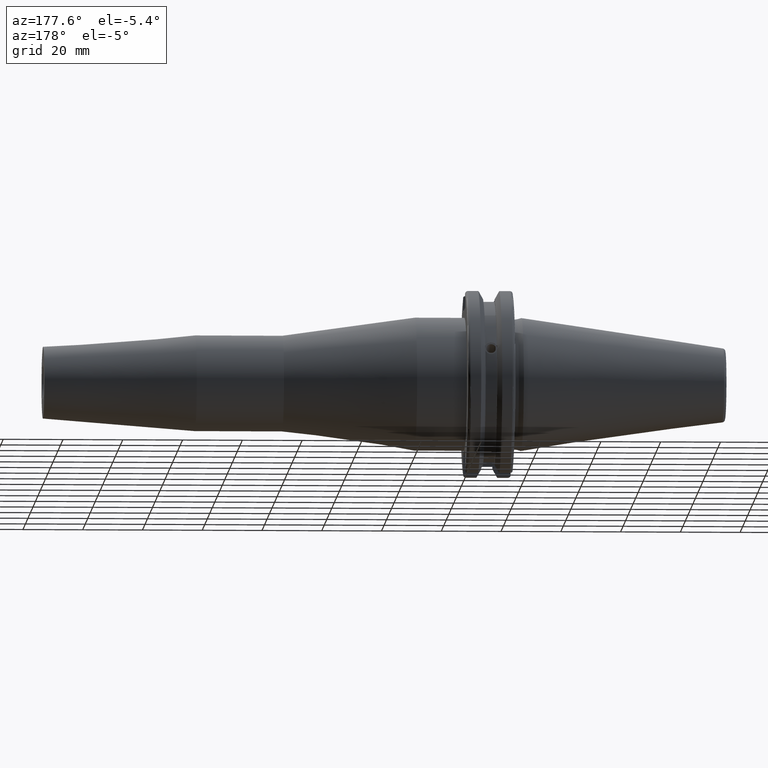
[diagram: clean part render]
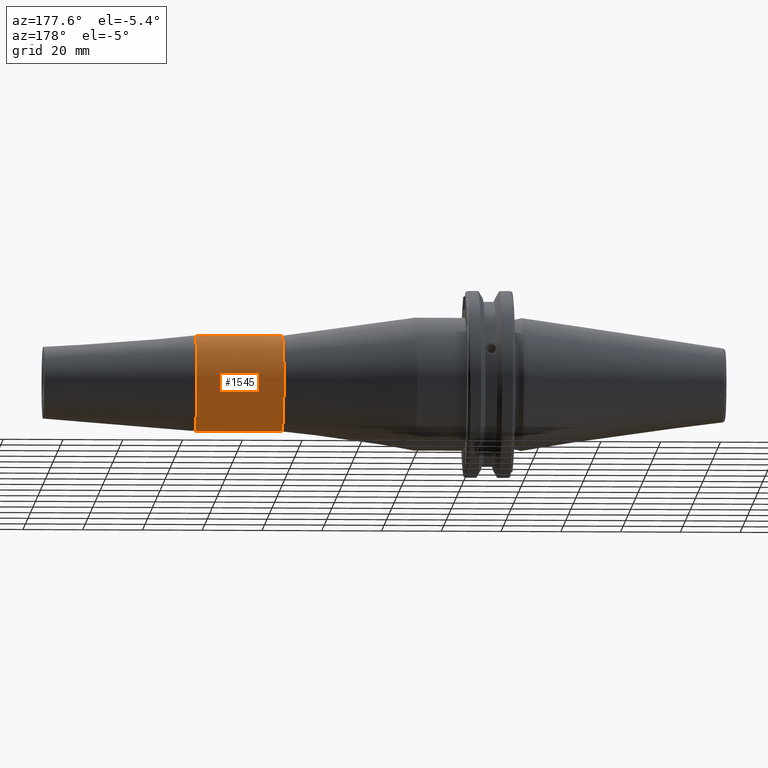
[diagram: same view with one face highlighted and labeled with its STEP entity id]
A machine part, auxiliary view. The second image highlights one B-rep face of the part: STEP entity #1545.
In plain terms, the highlighted cylindrical surface (bore or boss wall) has radius 16 mm, axis along (1, 0, 0).
Its self-contained STEP definition (entity closure, byte-faithful):
#150=CYLINDRICAL_SURFACE('',#1679,16.);
#191=FACE_OUTER_BOUND('',#289,.T.);
#289=EDGE_LOOP('',(#1106,#1107,#1108,#1109));
#388=LINE('',#2441,#488);
#488=VECTOR('',#1916,16.);
#588=CIRCLE('',#1672,16.);
#591=CIRCLE('',#1678,16.);
#667=VERTEX_POINT('',#2426);
#670=VERTEX_POINT('',#2437);
#833=EDGE_CURVE('',#667,#667,#588,.T.);
#837=EDGE_CURVE('',#670,#670,#591,.T.);
#839=EDGE_CURVE('',#667,#670,#388,.T.);
#1106=ORIENTED_EDGE('',*,*,#833,.F.);
#1107=ORIENTED_EDGE('',*,*,#839,.T.);
#1108=ORIENTED_EDGE('',*,*,#837,.T.);
#1109=ORIENTED_EDGE('',*,*,#839,.F.);
#1545=ADVANCED_FACE('',(#191),#150,.T.);
#1672=AXIS2_PLACEMENT_3D('',#2428,#1898,#1899);
#1678=AXIS2_PLACEMENT_3D('',#2438,#1911,#1912);
#1679=AXIS2_PLACEMENT_3D('',#2440,#1914,#1915);
#1898=DIRECTION('center_axis',(1.,0.,0.));
#1899=DIRECTION('ref_axis',(0.,0.,-1.));
#1911=DIRECTION('center_axis',(1.,0.,0.));
#1912=DIRECTION('ref_axis',(0.,0.,-1.));
#1914=DIRECTION('center_axis',(1.,0.,0.));
#1915=DIRECTION('ref_axis',(0.,1.,0.));
#1916=DIRECTION('',(-1.,0.,0.));
#2426=CARTESIAN_POINT('',(109.175181055301,-16.,-1.95943487863577E-15));
#2428=CARTESIAN_POINT('Origin',(109.175181055301,0.,0.));
#2437=CARTESIAN_POINT('',(80.,-16.,-1.95943487863577E-15));
#2438=CARTESIAN_POINT('Origin',(80.,0.,0.));
#2440=CARTESIAN_POINT('Origin',(94.5875905276507,0.,0.));
#2441=CARTESIAN_POINT('',(94.5875905276507,-16.,-1.95943487863577E-15));